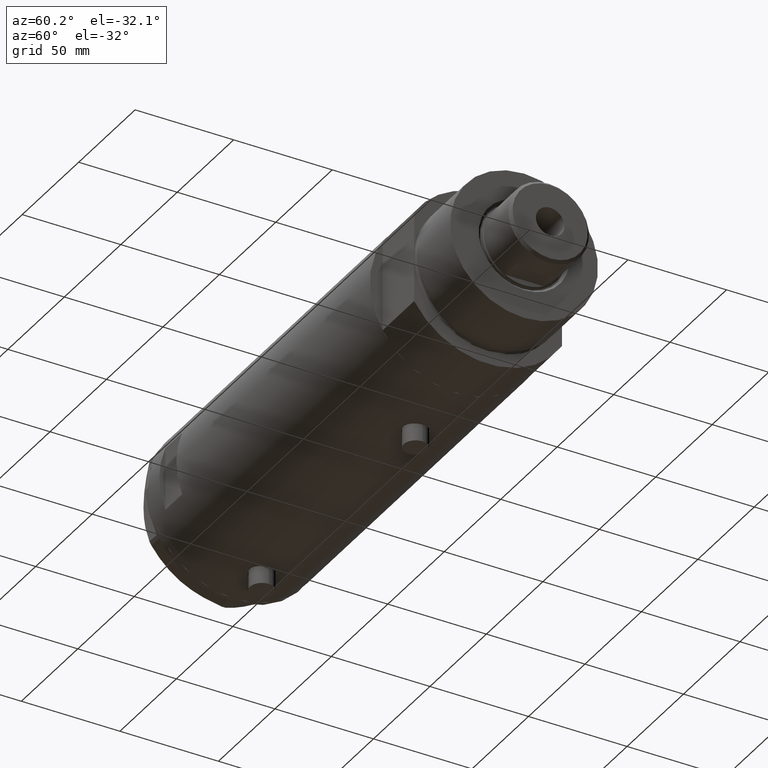
[diagram: clean part render]
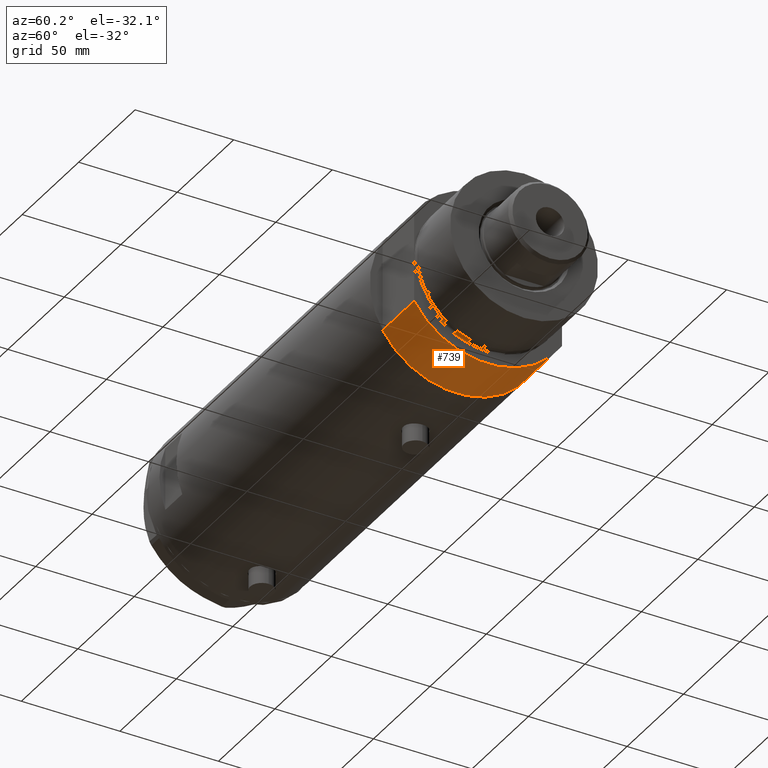
[diagram: same view with one face highlighted and labeled with its STEP entity id]
A machine part, auxiliary view. The second image highlights one B-rep face of the part: STEP entity #739.
In plain terms, the highlighted cylindrical surface (partial cylindrical patch) has radius 44 mm, axis along (-1, -0, 0).
Its self-contained STEP definition (entity closure, byte-faithful):
#252 = VERTEX_POINT ( 'NONE', #2787 ) ;
#354 = VERTEX_POINT ( 'NONE', #4529 ) ;
#448 = VECTOR ( 'NONE', #1593, 1000.000000000000000 ) ;
#462 = CIRCLE ( 'NONE', #3113, 44.00000000000000000 ) ;
#511 = VERTEX_POINT ( 'NONE', #1422 ) ;
#606 = CARTESIAN_POINT ( 'NONE',  ( 0.000000000000000000, 0.000000000000000000, 0.000000000000000000 ) ) ;
#733 = ORIENTED_EDGE ( 'NONE', *, *, #1250, .T. ) ;
#739 = ADVANCED_FACE ( 'NONE', ( #1416 ), #3571, .T. ) ;
#744 = CIRCLE ( 'NONE', #1324, 44.00000000000000000 ) ;
#847 = LINE ( 'NONE', #4371, #448 ) ;
#878 = DIRECTION ( 'NONE',  ( 0.000000000000000000, 0.000000000000000000, 1.000000000000000000 ) ) ;
#973 = DIRECTION ( 'NONE',  ( 1.000000000000000000, 0.000000000000000000, 0.000000000000000000 ) ) ;
#1054 = CARTESIAN_POINT ( 'NONE',  ( 23.01629857296780557, 37.50000000000000000, 0.000000000000000000 ) ) ;
#1250 = EDGE_CURVE ( 'NONE', #2866, #511, #847, .T. ) ;
#1262 = DIRECTION ( 'NONE',  ( 1.000000000000000000, 0.000000000000000000, 0.000000000000000000 ) ) ;
#1324 = AXIS2_PLACEMENT_3D ( 'NONE', #2691, #878, #1262 ) ;
#1416 = FACE_OUTER_BOUND ( 'NONE', #1562, .T. ) ;
#1422 = CARTESIAN_POINT ( 'NONE',  ( 23.01629857296780557, 37.50000000000000000, 27.89999999999999858 ) ) ;
#1457 = ORIENTED_EDGE ( 'NONE', *, *, #3142, .F. ) ;
#1508 = DIRECTION ( 'NONE',  ( -0.000000000000000000, -0.000000000000000000, 1.000000000000000000 ) ) ;
#1556 = LINE ( 'NONE', #4009, #4302 ) ;
#1562 = EDGE_LOOP ( 'NONE', ( #1457, #3553, #1969, #733 ) ) ;
#1593 = DIRECTION ( 'NONE',  ( -0.000000000000000000, -0.000000000000000000, 1.000000000000000000 ) ) ;
#1969 = ORIENTED_EDGE ( 'NONE', *, *, #3490, .T. ) ;
#2273 = AXIS2_PLACEMENT_3D ( 'NONE', #4263, #2488, #2846 ) ;
#2488 = DIRECTION ( 'NONE',  ( -0.000000000000000000, -0.000000000000000000, -1.000000000000000000 ) ) ;
#2691 = CARTESIAN_POINT ( 'NONE',  ( 0.000000000000000000, 0.000000000000000000, 27.89999999999999858 ) ) ;
#2723 = DIRECTION ( 'NONE',  ( 0.000000000000000000, 0.000000000000000000, 1.000000000000000000 ) ) ;
#2787 = CARTESIAN_POINT ( 'NONE',  ( 23.01629857296780557, -37.50000000000000000, 27.89999999999999858 ) ) ;
#2846 = DIRECTION ( 'NONE',  ( -1.000000000000000000, 0.000000000000000000, 0.000000000000000000 ) ) ;
#2866 = VERTEX_POINT ( 'NONE', #1054 ) ;
#2985 = EDGE_CURVE ( 'NONE', #354, #252, #1556, .T. ) ;
#3113 = AXIS2_PLACEMENT_3D ( 'NONE', #606, #2723, #973 ) ;
#3142 = EDGE_CURVE ( 'NONE', #252, #511, #744, .T. ) ;
#3490 = EDGE_CURVE ( 'NONE', #354, #2866, #462, .T. ) ;
#3553 = ORIENTED_EDGE ( 'NONE', *, *, #2985, .F. ) ;
#3571 = CYLINDRICAL_SURFACE ( 'NONE', #2273, 44.00000000000000000 ) ;
#4009 = CARTESIAN_POINT ( 'NONE',  ( 23.01629857296780557, -37.50000000000000000, 0.000000000000000000 ) ) ;
#4263 = CARTESIAN_POINT ( 'NONE',  ( 0.000000000000000000, 0.000000000000000000, 27.89999999999999858 ) ) ;
#4302 = VECTOR ( 'NONE', #1508, 1000.000000000000000 ) ;
#4371 = CARTESIAN_POINT ( 'NONE',  ( 23.01629857296780557, 37.50000000000000000, 0.000000000000000000 ) ) ;
#4529 = CARTESIAN_POINT ( 'NONE',  ( 23.01629857296780557, -37.50000000000000000, 0.000000000000000000 ) ) ;